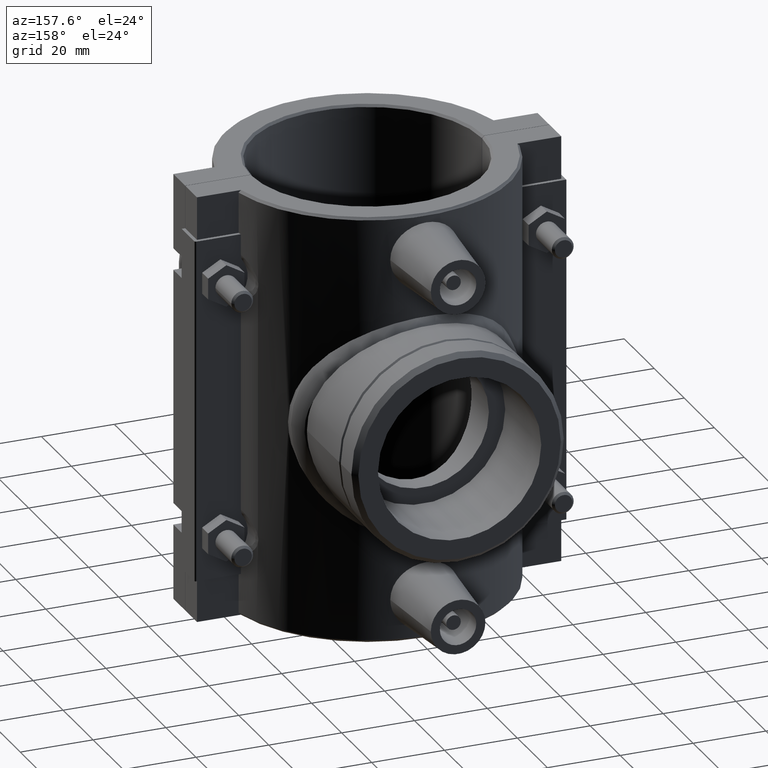
[diagram: clean part render]
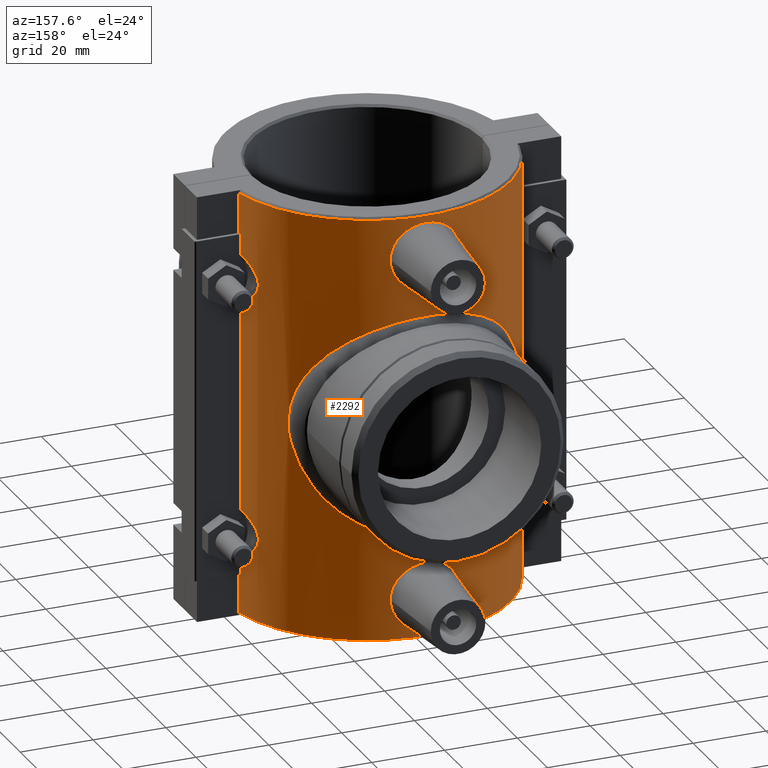
[diagram: same view with one face highlighted and labeled with its STEP entity id]
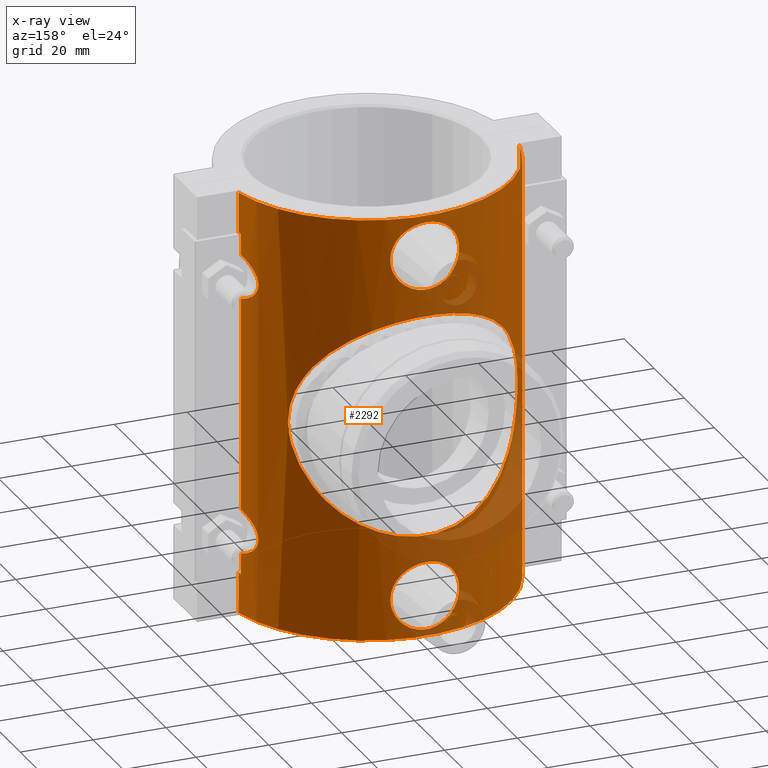
[diagram: x-ray of the same camera — body ghosted, the highlighted face saturated]
A machine part, auxiliary view. The second image highlights one B-rep face of the part: STEP entity #2292.
The next image is the same camera in x-ray: the body ghosted, the highlighted face saturated — about 12% of this face is hidden behind the body in this view.
In plain terms, the highlighted cylindrical surface (partial cylindrical patch) has radius 39.375 mm, axis along (0, 0, 1).
Its self-contained STEP definition (entity closure, byte-faithful):
#65=CYLINDRICAL_SURFACE('',#2455,39.375);
#107=FACE_BOUND('',#387,.T.);
#108=FACE_BOUND('',#388,.T.);
#109=FACE_BOUND('',#389,.T.);
#144=B_SPLINE_CURVE_WITH_KNOTS('',3,(#3369,#3370,#3371,#3372,#3373,#3374,
#3375,#3376,#3377,#3378),.UNSPECIFIED.,.F.,.F.,(4,1,1,1,1,1,1,4),(-2.23679704661286,
-1.96871094438914,-1.70062484216541,-1.43253873994169,-1.16445263771797,
-0.896366535494243,-0.628280433270519,-0.360194331046795),.UNSPECIFIED.);
#146=B_SPLINE_CURVE_WITH_KNOTS('',3,(#3438,#3439,#3440,#3441,#3442,#3443,
#3444,#3445,#3446,#3447),.UNSPECIFIED.,.F.,.F.,(4,1,1,1,1,1,1,4),(-2.23679704543051,
-1.96871094329826,-1.70062484116601,-1.43253873903376,-1.16445263690152,
-0.896366534769269,-0.628280432637021,-0.360194330504774),.UNSPECIFIED.);
#152=B_SPLINE_CURVE_WITH_KNOTS('',3,(#3642,#3643,#3644,#3645,#3646,#3647,
#3648,#3649,#3650,#3651),.UNSPECIFIED.,.F.,.F.,(4,1,1,1,1,1,1,4),(-2.23609285524702,
-1.96800676434559,-1.69992067344417,-1.43183458254275,-1.16374849164133,
-0.895662400739906,-0.627576309838484,-0.359490218937062),.UNSPECIFIED.);
#153=B_SPLINE_CURVE_WITH_KNOTS('',3,(#3696,#3697,#3698,#3699,#3700,#3701,
#3702,#3703,#3704,#3705,#3706,#3707,#3708,#3709,#3710,#3711,#3712,#3713,
#3714,#3715,#3716,#3717,#3718,#3719,#3720,#3721,#3722,#3723,#3724,#3725,
#3726,#3727,#3728,#3729),.UNSPECIFIED.,.T.,.F.,(4,2,2,2,2,2,2,2,2,2,2,2,
2,2,2,2,4),(0.,0.356014998471949,0.712029996943897,1.06709419230473,1.42215838766557,
1.7772225830264,2.13228677838723,2.48830177685918,2.84431677533113,3.20033177380308,
3.55634677227503,3.91141096763586,4.2664751629967,4.62153935835753,4.97660355371836,
5.33261855219031,5.68863355066226),.UNSPECIFIED.);
#154=B_SPLINE_CURVE_WITH_KNOTS('',3,(#3748,#3749,#3750,#3751,#3752,#3753,
#3754,#3755,#3756,#3757,#3758,#3759,#3760,#3761,#3762,#3763,#3764,#3765,
#3766,#3767,#3768,#3769,#3770,#3771,#3772,#3773,#3774,#3775,#3776,#3777,
#3778,#3779,#3780,#3781),.UNSPECIFIED.,.T.,.F.,(4,2,2,2,2,2,2,2,2,2,2,2,
2,2,2,2,4),(0.,0.356014998471948,0.712029996943897,1.06709419230473,1.42215838766556,
1.7772225830264,2.13228677838723,2.48830177685918,2.84431677533113,3.20033177380308,
3.55634677227503,3.91141096763586,4.2664751629967,4.62153935835753,4.97660355371836,
5.33261855219031,5.68863355066226),.UNSPECIFIED.);
#155=B_SPLINE_CURVE_WITH_KNOTS('',3,(#3810,#3811,#3812,#3813,#3814,#3815,
#3816,#3817,#3818,#3819),.UNSPECIFIED.,.F.,.F.,(4,1,1,1,1,1,1,4),(-2.23679704488359,
-1.96871094279365,-1.70062484070371,-1.43253873861376,-1.16445263652382,
-0.896366534433878,-0.628280432343935,-0.360194330253992),.UNSPECIFIED.);
#156=B_SPLINE_CURVE_WITH_KNOTS('',3,(#3827,#3828,#3829,#3830,#3831,#3832,
#3833,#3834),.UNSPECIFIED.,.F.,.F.,(4,2,2,4),(0.,0.645981179518012,1.29196235903602,
1.76864767389931),.UNSPECIFIED.);
#157=B_SPLINE_CURVE_WITH_KNOTS('',3,(#3836,#3837,#3838,#3839,#3840,#3841,
#3842,#3843,#3844,#3845,#3846,#3847,#3848,#3849,#3850,#3851,#3852,#3853,
#3854,#3855),.UNSPECIFIED.,.F.,.F.,(4,2,2,2,2,2,2,2,2,4),(0.,1.16348620632321,
2.26330441970973,2.8075191023437,3.13775493906589,3.43652113412912,3.82240357718107,
4.56678057629902,5.42160531668723,6.41168342017933),.UNSPECIFIED.);
#158=B_SPLINE_CURVE_WITH_KNOTS('',3,(#3857,#3858,#3859,#3860,#3861,#3862,
#3863,#3864,#3865,#3866,#3867,#3868,#3869,#3870),.UNSPECIFIED.,.F.,.F.,
(4,2,2,2,2,2,4),(8.40632199688605,8.88300731174924,9.52898849126725,10.1749696707853,
10.8209508503033,11.4669320298213,11.9436173446845),.UNSPECIFIED.);
#159=B_SPLINE_CURVE_WITH_KNOTS('',3,(#3872,#3873,#3874,#3875,#3876,#3877,
#3878,#3879,#3880,#3881,#3882,#3883,#3884,#3885,#3886,#3887,#3888,#3889,
#3890,#3891),.UNSPECIFIED.,.F.,.F.,(4,2,2,2,2,2,2,2,2,4),(0.,1.16349116454586,
2.26325169019806,2.80758392138209,3.13778661780516,3.43657147133626,3.82241099950025,
4.5667290381499,5.42156965460748,6.41168233159869),.UNSPECIFIED.);
#160=B_SPLINE_CURVE_WITH_KNOTS('',3,(#3892,#3893,#3894,#3895,#3896,#3897,
#3898,#3899),.UNSPECIFIED.,.F.,.F.,(4,2,2,4),(18.5812916676713,19.0579769825345,
19.7039581620525,20.3499393415705),.UNSPECIFIED.);
#228=FACE_OUTER_BOUND('',#386,.T.);
#386=EDGE_LOOP('',(#1744,#1745,#1746,#1747,#1748,#1749,#1750,#1751,#1752,
#1753,#1754,#1755,#1756,#1757,#1758,#1759,#1760,#1761,#1762,#1763));
#387=EDGE_LOOP('',(#1764));
#388=EDGE_LOOP('',(#1765));
#389=EDGE_LOOP('',(#1766,#1767,#1768,#1769,#1770));
#518=LINE('',#3239,#709);
#520=LINE('',#3242,#711);
#521=LINE('',#3262,#712);
#542=LINE('',#3386,#733);
#560=LINE('',#3489,#751);
#561=LINE('',#3509,#752);
#562=LINE('',#3529,#753);
#588=LINE('',#3585,#779);
#614=LINE('',#3821,#805);
#615=LINE('',#3824,#806);
#709=VECTOR('',#2617,5.66749808671728);
#711=VECTOR('',#2619,5.66749808671728);
#712=VECTOR('',#2622,58.5349961734345);
#733=VECTOR('',#2655,11.17);
#751=VECTOR('',#2695,5.66749808671728);
#752=VECTOR('',#2698,58.5349961734345);
#753=VECTOR('',#2701,5.66749808671728);
#779=VECTOR('',#2741,11.17);
#805=VECTOR('',#2849,11.17);
#806=VECTOR('',#2852,11.17);
#890=CIRCLE('',#2385,39.375);
#891=CIRCLE('',#2387,39.375);
#898=CIRCLE('',#2410,39.375);
#899=CIRCLE('',#2413,39.375);
#912=CIRCLE('',#2456,39.375);
#913=CIRCLE('',#2457,39.375);
#968=VERTEX_POINT('',#3212);
#969=VERTEX_POINT('',#3213);
#974=VERTEX_POINT('',#3225);
#975=VERTEX_POINT('',#3226);
#980=VERTEX_POINT('',#3238);
#981=VERTEX_POINT('',#3241);
#984=VERTEX_POINT('',#3253);
#985=VERTEX_POINT('',#3261);
#1005=VERTEX_POINT('',#3382);
#1018=VERTEX_POINT('',#3486);
#1019=VERTEX_POINT('',#3488);
#1022=VERTEX_POINT('',#3500);
#1023=VERTEX_POINT('',#3508);
#1026=VERTEX_POINT('',#3520);
#1027=VERTEX_POINT('',#3528);
#1043=VERTEX_POINT('',#3562);
#1045=VERTEX_POINT('',#3570);
#1050=VERTEX_POINT('',#3584);
#1065=VERTEX_POINT('',#3695);
#1071=VERTEX_POINT('',#3747);
#1078=VERTEX_POINT('',#3820);
#1079=VERTEX_POINT('',#3822);
#1080=VERTEX_POINT('',#3825);
#1081=VERTEX_POINT('',#3826);
#1082=VERTEX_POINT('',#3835);
#1083=VERTEX_POINT('',#3856);
#1084=VERTEX_POINT('',#3871);
#1188=EDGE_CURVE('',#968,#969,#890,.T.);
#1194=EDGE_CURVE('',#974,#975,#891,.T.);
#1200=EDGE_CURVE('',#969,#980,#518,.T.);
#1202=EDGE_CURVE('',#981,#974,#520,.T.);
#1206=EDGE_CURVE('',#985,#984,#521,.T.);
#1230=EDGE_CURVE('',#985,#980,#144,.T.);
#1233=EDGE_CURVE('',#1005,#975,#542,.T.);
#1235=EDGE_CURVE('',#981,#984,#146,.T.);
#1255=EDGE_CURVE('',#1019,#1018,#560,.T.);
#1259=EDGE_CURVE('',#1023,#1022,#561,.T.);
#1263=EDGE_CURVE('',#1027,#1026,#562,.T.);
#1281=EDGE_CURVE('',#1018,#1043,#898,.T.);
#1284=EDGE_CURVE('',#1045,#1027,#899,.T.);
#1291=EDGE_CURVE('',#1050,#1045,#588,.T.);
#1295=EDGE_CURVE('',#1023,#1026,#152,.T.);
#1315=EDGE_CURVE('',#1065,#1065,#153,.T.);
#1321=EDGE_CURVE('',#1071,#1071,#154,.T.);
#1334=EDGE_CURVE('',#1050,#1005,#912,.T.);
#1335=EDGE_CURVE('',#1019,#1022,#155,.T.);
#1336=EDGE_CURVE('',#1043,#1078,#614,.T.);
#1337=EDGE_CURVE('',#1079,#1078,#913,.T.);
#1338=EDGE_CURVE('',#968,#1079,#615,.T.);
#1339=EDGE_CURVE('',#1080,#1081,#156,.T.);
#1340=EDGE_CURVE('',#1081,#1082,#157,.T.);
#1341=EDGE_CURVE('',#1082,#1083,#158,.T.);
#1342=EDGE_CURVE('',#1083,#1084,#159,.T.);
#1343=EDGE_CURVE('',#1084,#1080,#160,.T.);
#1744=ORIENTED_EDGE('',*,*,#1200,.T.);
#1745=ORIENTED_EDGE('',*,*,#1230,.F.);
#1746=ORIENTED_EDGE('',*,*,#1206,.T.);
#1747=ORIENTED_EDGE('',*,*,#1235,.F.);
#1748=ORIENTED_EDGE('',*,*,#1202,.T.);
#1749=ORIENTED_EDGE('',*,*,#1194,.T.);
#1750=ORIENTED_EDGE('',*,*,#1233,.F.);
#1751=ORIENTED_EDGE('',*,*,#1334,.F.);
#1752=ORIENTED_EDGE('',*,*,#1291,.T.);
#1753=ORIENTED_EDGE('',*,*,#1284,.T.);
#1754=ORIENTED_EDGE('',*,*,#1263,.T.);
#1755=ORIENTED_EDGE('',*,*,#1295,.F.);
#1756=ORIENTED_EDGE('',*,*,#1259,.T.);
#1757=ORIENTED_EDGE('',*,*,#1335,.F.);
#1758=ORIENTED_EDGE('',*,*,#1255,.T.);
#1759=ORIENTED_EDGE('',*,*,#1281,.T.);
#1760=ORIENTED_EDGE('',*,*,#1336,.T.);
#1761=ORIENTED_EDGE('',*,*,#1337,.F.);
#1762=ORIENTED_EDGE('',*,*,#1338,.F.);
#1763=ORIENTED_EDGE('',*,*,#1188,.T.);
#1764=ORIENTED_EDGE('',*,*,#1315,.T.);
#1765=ORIENTED_EDGE('',*,*,#1321,.T.);
#1766=ORIENTED_EDGE('',*,*,#1339,.T.);
#1767=ORIENTED_EDGE('',*,*,#1340,.T.);
#1768=ORIENTED_EDGE('',*,*,#1341,.T.);
#1769=ORIENTED_EDGE('',*,*,#1342,.T.);
#1770=ORIENTED_EDGE('',*,*,#1343,.T.);
#2292=ADVANCED_FACE('',(#228,#107,#108,#109),#65,.T.);
#2385=AXIS2_PLACEMENT_3D('',#3214,#2599,#2600);
#2387=AXIS2_PLACEMENT_3D('',#3227,#2608,#2609);
#2410=AXIS2_PLACEMENT_3D('',#3564,#2721,#2722);
#2413=AXIS2_PLACEMENT_3D('',#3571,#2729,#2730);
#2455=AXIS2_PLACEMENT_3D('',#3808,#2845,#2846);
#2456=AXIS2_PLACEMENT_3D('',#3809,#2847,#2848);
#2457=AXIS2_PLACEMENT_3D('',#3823,#2850,#2851);
#2599=DIRECTION('center_axis',(0.,0.,-1.));
#2600=DIRECTION('ref_axis',(1.,0.,0.));
#2608=DIRECTION('center_axis',(0.,0.,1.));
#2609=DIRECTION('ref_axis',(1.,0.,0.));
#2617=DIRECTION('',(0.,0.,1.));
#2619=DIRECTION('',(0.,0.,1.));
#2622=DIRECTION('',(0.,0.,1.));
#2655=DIRECTION('',(0.,0.,-1.));
#2695=DIRECTION('',(0.,0.,-1.));
#2698=DIRECTION('',(0.,0.,-1.));
#2701=DIRECTION('',(0.,0.,-1.));
#2721=DIRECTION('center_axis',(0.,0.,-1.));
#2722=DIRECTION('ref_axis',(1.,0.,0.));
#2729=DIRECTION('center_axis',(0.,0.,1.));
#2730=DIRECTION('ref_axis',(1.,0.,0.));
#2741=DIRECTION('',(0.,0.,-1.));
#2845=DIRECTION('center_axis',(0.,0.,1.));
#2846=DIRECTION('ref_axis',(1.,0.,0.));
#2847=DIRECTION('center_axis',(0.,0.,1.));
#2848=DIRECTION('ref_axis',(1.,0.,0.));
#2849=DIRECTION('',(0.,0.,-1.));
#2850=DIRECTION('center_axis',(0.,0.,-1.));
#2851=DIRECTION('ref_axis',(1.,0.,0.));
#2852=DIRECTION('',(0.,0.,-1.));
#3212=CARTESIAN_POINT('',(-38.5794634488351,7.87499999999999,-47.2));
#3213=CARTESIAN_POINT('',(-38.3617648186316,8.87499999999999,-47.2));
#3214=CARTESIAN_POINT('Origin',(0.,0.,-47.2));
#3225=CARTESIAN_POINT('',(-38.3617648186316,8.87499999999999,47.2));
#3226=CARTESIAN_POINT('',(-38.5794634488351,7.87499999999999,47.2));
#3227=CARTESIAN_POINT('Origin',(0.,0.,47.2));
#3238=CARTESIAN_POINT('',(-38.3617648186318,8.87499999999956,-41.5325019132827));
#3239=CARTESIAN_POINT('',(-38.3617648186316,8.87499999999999,0.));
#3241=CARTESIAN_POINT('',(-38.3617648186318,8.87499999999956,41.5325019132827));
#3242=CARTESIAN_POINT('',(-38.3617648186316,8.87499999999999,0.));
#3253=CARTESIAN_POINT('',(-38.3617648186318,8.87499999999956,29.2674980867173));
#3261=CARTESIAN_POINT('',(-38.3617648186318,8.87499999999956,-29.2674980867173));
#3262=CARTESIAN_POINT('',(-38.3617648186316,8.87499999999999,0.));
#3369=CARTESIAN_POINT('Ctrl Pts',(-38.3617648186317,8.8749999999995,-29.2674980867174));
#3370=CARTESIAN_POINT('Ctrl Pts',(-38.1532387728328,9.7763439016894,-29.5398859696479));
#3371=CARTESIAN_POINT('Ctrl Pts',(-37.6795406994699,11.5271730571094,-30.2103196623145));
#3372=CARTESIAN_POINT('Ctrl Pts',(-36.8950726308391,13.8148468887016,-31.7241798095908));
#3373=CARTESIAN_POINT('Ctrl Pts',(-36.2284522761401,15.4295263626613,-33.9879877213974));
#3374=CARTESIAN_POINT('Ctrl Pts',(-36.2245338176189,15.4362747750041,-36.8171381414192));
#3375=CARTESIAN_POINT('Ctrl Pts',(-36.8917757079543,13.8204970105827,-39.0742706705837));
#3376=CARTESIAN_POINT('Ctrl Pts',(-37.6777684709211,11.5302183310091,-40.5894169961475));
#3377=CARTESIAN_POINT('Ctrl Pts',(-38.1532387728328,9.77634390168942,-41.2601140303521));
#3378=CARTESIAN_POINT('Ctrl Pts',(-38.3617648186317,8.8749999999995,-41.5325019132826));
#3382=CARTESIAN_POINT('',(-38.5794634488351,7.875,58.37));
#3386=CARTESIAN_POINT('',(-38.5794634488351,7.875,0.));
#3438=CARTESIAN_POINT('Ctrl Pts',(-38.3617648186317,8.8749999999995,41.5325019132826));
#3439=CARTESIAN_POINT('Ctrl Pts',(-38.1532387763912,9.77634388630819,41.2601140350003));
#3440=CARTESIAN_POINT('Ctrl Pts',(-37.6777684672854,11.5302183437461,40.5894169905642));
#3441=CARTESIAN_POINT('Ctrl Pts',(-36.8917757065733,13.8204970134078,39.0742706672572));
#3442=CARTESIAN_POINT('Ctrl Pts',(-36.2245338174657,15.4362747756134,36.8171381407191));
#3443=CARTESIAN_POINT('Ctrl Pts',(-36.228452275591,15.4295263642557,33.987987726037));
#3444=CARTESIAN_POINT('Ctrl Pts',(-36.8950726292815,13.8148468918939,31.7241798133507));
#3445=CARTESIAN_POINT('Ctrl Pts',(-37.679540696668,11.5271730681516,30.2103196664156));
#3446=CARTESIAN_POINT('Ctrl Pts',(-38.1532387763912,9.77634388630819,29.5398859649997));
#3447=CARTESIAN_POINT('Ctrl Pts',(-38.3617648186317,8.8749999999995,29.2674980867174));
#3486=CARTESIAN_POINT('',(38.3617648186316,8.87499999999999,-47.2));
#3488=CARTESIAN_POINT('',(38.3617648186318,8.87499999999956,-41.5325019132827));
#3489=CARTESIAN_POINT('',(38.3617648186316,8.87499999999999,0.));
#3500=CARTESIAN_POINT('',(38.3617648186318,8.87499999999956,-29.2674980867173));
#3508=CARTESIAN_POINT('',(38.3617648186318,8.87499999999956,29.2674980867173));
#3509=CARTESIAN_POINT('',(38.3617648186316,8.87499999999999,0.));
#3520=CARTESIAN_POINT('',(38.3617648186318,8.87499999999956,41.5325019132827));
#3528=CARTESIAN_POINT('',(38.3617648186316,8.87499999999999,47.2));
#3529=CARTESIAN_POINT('',(38.3617648186316,8.87499999999999,0.));
#3562=CARTESIAN_POINT('',(38.5794634488351,7.87499999999999,-47.2));
#3564=CARTESIAN_POINT('Origin',(0.,0.,-47.2));
#3570=CARTESIAN_POINT('',(38.5794634488351,7.87499999999999,47.2));
#3571=CARTESIAN_POINT('Origin',(0.,0.,47.2));
#3584=CARTESIAN_POINT('',(38.5794634488351,7.87499999999999,58.37));
#3585=CARTESIAN_POINT('',(38.5794634488351,7.87499999999999,0.));
#3642=CARTESIAN_POINT('Ctrl Pts',(38.3617648186317,8.8749999999995,29.2674980867174));
#3643=CARTESIAN_POINT('Ctrl Pts',(38.1532388333755,9.77634363999648,29.5398858905638));
#3644=CARTESIAN_POINT('Ctrl Pts',(37.6771605191043,11.5312642110856,30.2102998012306));
#3645=CARTESIAN_POINT('Ctrl Pts',(36.8921396789315,13.8198729314372,31.7264222502999));
#3646=CARTESIAN_POINT('Ctrl Pts',(36.2246883133286,15.4360080026379,33.9828098704173));
#3647=CARTESIAN_POINT('Ctrl Pts',(36.2285403039292,15.4293752376368,36.812145980274));
#3648=CARTESIAN_POINT('Ctrl Pts',(36.8951278874751,13.8147515853218,39.0758201964971));
#3649=CARTESIAN_POINT('Ctrl Pts',(37.6795661046194,11.5271296631764,40.5897123228409));
#3650=CARTESIAN_POINT('Ctrl Pts',(38.1532388333755,9.77634363999647,41.2601141094362));
#3651=CARTESIAN_POINT('Ctrl Pts',(38.3617648186317,8.87499999999951,41.5325019132826));
#3695=CARTESIAN_POINT('',(9.44885677958251,38.2244650787809,47.2));
#3696=CARTESIAN_POINT('Ctrl Pts',(-9.44885677958251,38.2244650787809,47.2));
#3697=CARTESIAN_POINT('Ctrl Pts',(-9.44885677958251,38.2244650787809,46.0132833384269));
#3698=CARTESIAN_POINT('Ctrl Pts',(-9.20641468561252,38.2868444369384,44.752476197349));
#3699=CARTESIAN_POINT('Ctrl Pts',(-8.23143659111838,38.5082325071646,42.443271999074));
#3700=CARTESIAN_POINT('Ctrl Pts',(-7.49923403788687,38.6636599373278,41.3943922368591));
#3701=CARTESIAN_POINT('Ctrl Pts',(-5.8213504145831,38.95157397346,39.7451610866894));
#3702=CARTESIAN_POINT('Ctrl Pts',(-4.76306580802813,39.1031880173406,39.0320549957885));
#3703=CARTESIAN_POINT('Ctrl Pts',(-2.44433362832232,39.3162986767516,38.0852741919757));
#3704=CARTESIAN_POINT('Ctrl Pts',(-1.18354731786945,39.375,37.8518019830149));
#3705=CARTESIAN_POINT('Ctrl Pts',(1.18354731786945,39.375,37.8518019830149));
#3706=CARTESIAN_POINT('Ctrl Pts',(2.44433362832233,39.3162986767516,38.0852741919757));
#3707=CARTESIAN_POINT('Ctrl Pts',(4.76306580802814,39.1031880173406,39.0320549957885));
#3708=CARTESIAN_POINT('Ctrl Pts',(5.8213504145831,38.95157397346,39.7451610866894));
#3709=CARTESIAN_POINT('Ctrl Pts',(7.49923403788688,38.6636599373278,41.3943922368591));
#3710=CARTESIAN_POINT('Ctrl Pts',(8.23143659111838,38.5082325071646,42.443271999074));
#3711=CARTESIAN_POINT('Ctrl Pts',(9.20641468561252,38.2868444369384,44.7524761973491));
#3712=CARTESIAN_POINT('Ctrl Pts',(9.44885677958251,38.2244650787809,46.0132833384269));
#3713=CARTESIAN_POINT('Ctrl Pts',(9.44885677958251,38.2244650787809,48.3867166615732));
#3714=CARTESIAN_POINT('Ctrl Pts',(9.20641468561253,38.2868444369384,49.647523802651));
#3715=CARTESIAN_POINT('Ctrl Pts',(8.23143659111839,38.5082325071646,51.956728000926));
#3716=CARTESIAN_POINT('Ctrl Pts',(7.49923403788688,38.6636599373278,53.0056077631409));
#3717=CARTESIAN_POINT('Ctrl Pts',(5.8213504145831,38.95157397346,54.6548389133106));
#3718=CARTESIAN_POINT('Ctrl Pts',(4.76306580802813,39.1031880173406,55.3679450042115));
#3719=CARTESIAN_POINT('Ctrl Pts',(2.44433362832232,39.3162986767516,56.3147258080244));
#3720=CARTESIAN_POINT('Ctrl Pts',(1.18354731786945,39.375,56.5481980169852));
#3721=CARTESIAN_POINT('Ctrl Pts',(-1.18354731786944,39.375,56.5481980169852));
#3722=CARTESIAN_POINT('Ctrl Pts',(-2.44433362832232,39.3162986767516,56.3147258080244));
#3723=CARTESIAN_POINT('Ctrl Pts',(-4.76306580802813,39.1031880173406,55.3679450042115));
#3724=CARTESIAN_POINT('Ctrl Pts',(-5.8213504145831,38.95157397346,54.6548389133106));
#3725=CARTESIAN_POINT('Ctrl Pts',(-7.49923403788688,38.6636599373278,53.0056077631409));
#3726=CARTESIAN_POINT('Ctrl Pts',(-8.23143659111838,38.5082325071646,51.956728000926));
#3727=CARTESIAN_POINT('Ctrl Pts',(-9.20641468561252,38.2868444369384,49.647523802651));
#3728=CARTESIAN_POINT('Ctrl Pts',(-9.44885677958251,38.2244650787809,48.3867166615732));
#3729=CARTESIAN_POINT('Ctrl Pts',(-9.44885677958251,38.2244650787809,47.2));
#3747=CARTESIAN_POINT('',(9.44885677958251,38.2244650787809,-47.2));
#3748=CARTESIAN_POINT('Ctrl Pts',(9.44885677958251,38.2244650787809,-47.2));
#3749=CARTESIAN_POINT('Ctrl Pts',(9.44885677958251,38.2244650787809,-46.0132833384269));
#3750=CARTESIAN_POINT('Ctrl Pts',(9.20641468561252,38.2868444369384,-44.7524761973491));
#3751=CARTESIAN_POINT('Ctrl Pts',(8.23143659111838,38.5082325071646,-42.443271999074));
#3752=CARTESIAN_POINT('Ctrl Pts',(7.49923403788688,38.6636599373278,-41.3943922368591));
#3753=CARTESIAN_POINT('Ctrl Pts',(5.8213504145831,38.95157397346,-39.7451610866894));
#3754=CARTESIAN_POINT('Ctrl Pts',(4.76306580802814,39.1031880173406,-39.0320549957885));
#3755=CARTESIAN_POINT('Ctrl Pts',(2.44433362832233,39.3162986767516,-38.0852741919757));
#3756=CARTESIAN_POINT('Ctrl Pts',(1.18354731786945,39.375,-37.8518019830149));
#3757=CARTESIAN_POINT('Ctrl Pts',(-1.18354731786945,39.375,-37.8518019830149));
#3758=CARTESIAN_POINT('Ctrl Pts',(-2.44433362832232,39.3162986767516,-38.0852741919757));
#3759=CARTESIAN_POINT('Ctrl Pts',(-4.76306580802814,39.1031880173406,-39.0320549957885));
#3760=CARTESIAN_POINT('Ctrl Pts',(-5.8213504145831,38.95157397346,-39.7451610866894));
#3761=CARTESIAN_POINT('Ctrl Pts',(-7.49923403788688,38.6636599373278,-41.3943922368591));
#3762=CARTESIAN_POINT('Ctrl Pts',(-8.23143659111838,38.5082325071646,-42.443271999074));
#3763=CARTESIAN_POINT('Ctrl Pts',(-9.20641468561252,38.2868444369384,-44.7524761973491));
#3764=CARTESIAN_POINT('Ctrl Pts',(-9.44885677958251,38.2244650787809,-46.0132833384269));
#3765=CARTESIAN_POINT('Ctrl Pts',(-9.44885677958251,38.2244650787809,-48.3867166615732));
#3766=CARTESIAN_POINT('Ctrl Pts',(-9.20641468561252,38.2868444369384,-49.647523802651));
#3767=CARTESIAN_POINT('Ctrl Pts',(-8.23143659111838,38.5082325071646,-51.956728000926));
#3768=CARTESIAN_POINT('Ctrl Pts',(-7.49923403788688,38.6636599373278,-53.0056077631409));
#3769=CARTESIAN_POINT('Ctrl Pts',(-5.8213504145831,38.95157397346,-54.6548389133106));
#3770=CARTESIAN_POINT('Ctrl Pts',(-4.76306580802813,39.1031880173406,-55.3679450042115));
#3771=CARTESIAN_POINT('Ctrl Pts',(-2.44433362832232,39.3162986767516,-56.3147258080244));
#3772=CARTESIAN_POINT('Ctrl Pts',(-1.18354731786945,39.375,-56.5481980169852));
#3773=CARTESIAN_POINT('Ctrl Pts',(1.18354731786944,39.375,-56.5481980169852));
#3774=CARTESIAN_POINT('Ctrl Pts',(2.44433362832232,39.3162986767516,-56.3147258080244));
#3775=CARTESIAN_POINT('Ctrl Pts',(4.76306580802813,39.1031880173406,-55.3679450042115));
#3776=CARTESIAN_POINT('Ctrl Pts',(5.8213504145831,38.95157397346,-54.6548389133106));
#3777=CARTESIAN_POINT('Ctrl Pts',(7.49923403788687,38.6636599373278,-53.0056077631409));
#3778=CARTESIAN_POINT('Ctrl Pts',(8.23143659111838,38.5082325071646,-51.9567280009261));
#3779=CARTESIAN_POINT('Ctrl Pts',(9.20641468561252,38.2868444369384,-49.647523802651));
#3780=CARTESIAN_POINT('Ctrl Pts',(9.44885677958251,38.2244650787809,-48.3867166615732));
#3781=CARTESIAN_POINT('Ctrl Pts',(9.44885677958251,38.2244650787809,-47.2));
#3808=CARTESIAN_POINT('Origin',(0.,0.,0.));
#3809=CARTESIAN_POINT('Origin',(0.,0.,58.37));
#3810=CARTESIAN_POINT('Ctrl Pts',(38.3617648186317,8.8749999999995,-41.5325019132826));
#3811=CARTESIAN_POINT('Ctrl Pts',(38.1532387780374,9.77634387919272,-41.2601140371506));
#3812=CARTESIAN_POINT('Ctrl Pts',(37.6795406953721,11.5271730732592,-40.5896803316875));
#3813=CARTESIAN_POINT('Ctrl Pts',(36.8950726285609,13.8148468933708,-39.07582018491));
#3814=CARTESIAN_POINT('Ctrl Pts',(36.228452275337,15.4295263649932,-36.8120122718165));
#3815=CARTESIAN_POINT('Ctrl Pts',(36.2245338173948,15.4362747758953,-33.9828618596049));
#3816=CARTESIAN_POINT('Ctrl Pts',(36.8917757059344,13.8204970147147,-31.7257293342817));
#3817=CARTESIAN_POINT('Ctrl Pts',(37.6777684656037,11.5302183496378,-30.2105830120185));
#3818=CARTESIAN_POINT('Ctrl Pts',(38.1532387780374,9.7763438791927,-29.5398859628494));
#3819=CARTESIAN_POINT('Ctrl Pts',(38.3617648186317,8.8749999999995,-29.2674980867174));
#3820=CARTESIAN_POINT('',(38.5794634488351,7.87499999999999,-58.37));
#3821=CARTESIAN_POINT('',(38.5794634488351,7.87499999999999,0.));
#3822=CARTESIAN_POINT('',(-38.5794634488351,7.875,-58.37));
#3823=CARTESIAN_POINT('Origin',(0.,0.,-58.37));
#3824=CARTESIAN_POINT('',(-38.5794634488351,7.875,0.));
#3825=CARTESIAN_POINT('',(31.5,23.625,1.11022302462516E-15));
#3826=CARTESIAN_POINT('',(26.9187318609177,28.7362575851486,16.3594582734275));
#3827=CARTESIAN_POINT('Ctrl Pts',(31.5,23.625,1.11022302462516E-15));
#3828=CARTESIAN_POINT('Ctrl Pts',(31.5,23.625,2.15327059839337));
#3829=CARTESIAN_POINT('Ctrl Pts',(31.2780467196378,23.9279039689149,4.28852470908759));
#3830=CARTESIAN_POINT('Ctrl Pts',(30.4259590803895,25.0024359872944,8.42429040913865));
#3831=CARTESIAN_POINT('Ctrl Pts',(29.7960912566457,25.7683869400545,10.4263298110625));
#3832=CARTESIAN_POINT('Ctrl Pts',(28.3914817075653,27.2963547860409,13.7294005441814));
#3833=CARTESIAN_POINT('Ctrl Pts',(27.6974656799735,28.0067775265824,15.0780877955162));
#3834=CARTESIAN_POINT('Ctrl Pts',(26.9187318609177,28.7362575851487,16.3594582734274));
#3835=CARTESIAN_POINT('',(-26.9187318609182,28.7362575851483,16.3594582734267));
#3836=CARTESIAN_POINT('Ctrl Pts',(26.9187318609179,28.7362575851484,16.3594582734271));
#3837=CARTESIAN_POINT('Ctrl Pts',(25.1075197957008,30.4329131702528,19.3397239467736));
#3838=CARTESIAN_POINT('Ctrl Pts',(22.7079269700689,32.3543209201565,22.0194025256257));
#3839=CARTESIAN_POINT('Ctrl Pts',(16.8585127451055,35.7345582435431,26.3505377891985));
#3840=CARTESIAN_POINT('Ctrl Pts',(13.5727981854966,37.1515244484902,27.9776933772116));
#3841=CARTESIAN_POINT('Ctrl Pts',(8.14824236475228,38.5673543153814,29.5742033725196));
#3842=CARTESIAN_POINT('Ctrl Pts',(6.28884869507743,38.9166882570087,29.9589916740709));
#3843=CARTESIAN_POINT('Ctrl Pts',(3.23078689007856,39.2594336804441,30.3354199928792));
#3844=CARTESIAN_POINT('Ctrl Pts',(2.06571963951946,39.3381907417112,30.4213434478583));
#3845=CARTESIAN_POINT('Ctrl Pts',(-0.162960638217514,39.388897656078,30.4767147631299));
#3846=CARTESIAN_POINT('Ctrl Pts',(-1.22186673718899,39.3702309454479,30.456380212008));
#3847=CARTESIAN_POINT('Ctrl Pts',(-3.64020265404604,39.2301366570375,30.3031917510595));
#3848=CARTESIAN_POINT('Ctrl Pts',(-4.9904656479513,39.0806905846304,30.1397223080439));
#3849=CARTESIAN_POINT('Ctrl Pts',(-8.88480487012735,38.4474039383904,29.4395927542055));
#3850=CARTESIAN_POINT('Ctrl Pts',(-11.3373948041858,37.7868769746663,28.7044835331252));
#3851=CARTESIAN_POINT('Ctrl Pts',(-16.2717862212075,35.9655981232211,26.5834644127264));
#3852=CARTESIAN_POINT('Ctrl Pts',(-18.6673322333193,34.7579897946622,25.1330632988056));
#3853=CARTESIAN_POINT('Ctrl Pts',(-23.2305412016014,31.9224858302187,21.4035915009918));
#3854=CARTESIAN_POINT('Ctrl Pts',(-25.2882698095978,30.2635953269834,19.0423081597329));
#3855=CARTESIAN_POINT('Ctrl Pts',(-26.918731860918,28.7362575851484,16.359458273427));
#3856=CARTESIAN_POINT('',(-26.9187318609179,28.7362575851485,-16.3594582734271));
#3857=CARTESIAN_POINT('Ctrl Pts',(-26.9187318609182,28.7362575851482,16.3594582734267));
#3858=CARTESIAN_POINT('Ctrl Pts',(-27.6974656799737,28.0067775265821,15.0780877955157));
#3859=CARTESIAN_POINT('Ctrl Pts',(-28.3914817075654,27.2963547860408,13.7294005441811));
#3860=CARTESIAN_POINT('Ctrl Pts',(-29.7960912566457,25.7683869400545,10.4263298110625));
#3861=CARTESIAN_POINT('Ctrl Pts',(-30.4259590803895,25.0024359872944,8.42429040913865));
#3862=CARTESIAN_POINT('Ctrl Pts',(-31.2780467196378,23.9279039689149,4.2885247090876));
#3863=CARTESIAN_POINT('Ctrl Pts',(-31.5,23.625,2.15327059839337));
#3864=CARTESIAN_POINT('Ctrl Pts',(-31.5,23.625,-2.15327059839337));
#3865=CARTESIAN_POINT('Ctrl Pts',(-31.2780467196378,23.9279039689149,-4.28852470908759));
#3866=CARTESIAN_POINT('Ctrl Pts',(-30.4259590803895,25.0024359872944,-8.42429040913865));
#3867=CARTESIAN_POINT('Ctrl Pts',(-29.7960912566457,25.7683869400545,-10.4263298110625));
#3868=CARTESIAN_POINT('Ctrl Pts',(-28.3914817075654,27.2963547860409,-13.7294005441812));
#3869=CARTESIAN_POINT('Ctrl Pts',(-27.6974656799736,28.0067775265823,-15.078087795516));
#3870=CARTESIAN_POINT('Ctrl Pts',(-26.9187318609179,28.7362575851485,-16.3594582734271));
#3871=CARTESIAN_POINT('',(26.918731860918,28.7362575851484,-16.3594582734269));
#3872=CARTESIAN_POINT('Ctrl Pts',(-26.918731860918,28.7362575851484,-16.359458273427));
#3873=CARTESIAN_POINT('Ctrl Pts',(-25.1075120771798,30.4329204005888,-19.3397366472428));
#3874=CARTESIAN_POINT('Ctrl Pts',(-22.7079065146559,32.3543372428927,-22.0194253529859));
#3875=CARTESIAN_POINT('Ctrl Pts',(-16.8586188511121,35.7344926719116,-26.3504519634409));
#3876=CARTESIAN_POINT('Ctrl Pts',(-13.5730938917071,37.1513950824426,-27.9775437058883));
#3877=CARTESIAN_POINT('Ctrl Pts',(-8.14838074241099,38.567344022301,-29.5741936445018));
#3878=CARTESIAN_POINT('Ctrl Pts',(-6.28858354214404,38.9167516983198,-29.9590617929142));
#3879=CARTESIAN_POINT('Ctrl Pts',(-3.23021290364877,39.2594775455611,-30.33546789998));
#3880=CARTESIAN_POINT('Ctrl Pts',(-2.06526012978407,39.338211388797,-30.4213659997121));
#3881=CARTESIAN_POINT('Ctrl Pts',(0.163370198584181,39.3888977489934,-30.4767148596189));
#3882=CARTESIAN_POINT('Ctrl Pts',(1.22234216716818,39.3702179382464,-30.4563660399506));
#3883=CARTESIAN_POINT('Ctrl Pts',(3.64058862415083,39.2300955199836,-30.303146703312));
#3884=CARTESIAN_POINT('Ctrl Pts',(4.99069907648466,39.0806556011334,-30.1396837147458));
#3885=CARTESIAN_POINT('Ctrl Pts',(8.88468493557873,38.447417700566,-29.4396078094639));
#3886=CARTESIAN_POINT('Ctrl Pts',(11.3370884197295,37.7869572202475,-28.704572043046));
#3887=CARTESIAN_POINT('Ctrl Pts',(16.2713973388486,35.9657793692233,-26.5836811626286));
#3888=CARTESIAN_POINT('Ctrl Pts',(18.6670142642517,34.7581650035448,-25.133282234551));
#3889=CARTESIAN_POINT('Ctrl Pts',(23.2303985669664,31.9226003702732,-21.403755485469));
#3890=CARTESIAN_POINT('Ctrl Pts',(25.2882133117724,30.2636482514051,-19.0424011242913));
#3891=CARTESIAN_POINT('Ctrl Pts',(26.918731860918,28.7362575851484,-16.359458273427));
#3892=CARTESIAN_POINT('Ctrl Pts',(26.918731860918,28.7362575851484,-16.3594582734269));
#3893=CARTESIAN_POINT('Ctrl Pts',(27.6974656799736,28.0067775265822,-15.0780877955159));
#3894=CARTESIAN_POINT('Ctrl Pts',(28.3914817075654,27.2963547860408,-13.7294005441812));
#3895=CARTESIAN_POINT('Ctrl Pts',(29.7960912566457,25.7683869400545,-10.4263298110625));
#3896=CARTESIAN_POINT('Ctrl Pts',(30.4259590803895,25.0024359872944,-8.42429040913864));
#3897=CARTESIAN_POINT('Ctrl Pts',(31.2780467196378,23.9279039689149,-4.28852470908758));
#3898=CARTESIAN_POINT('Ctrl Pts',(31.5,23.625,-2.15327059839337));
#3899=CARTESIAN_POINT('Ctrl Pts',(31.5,23.625,-5.55111512312578E-16));